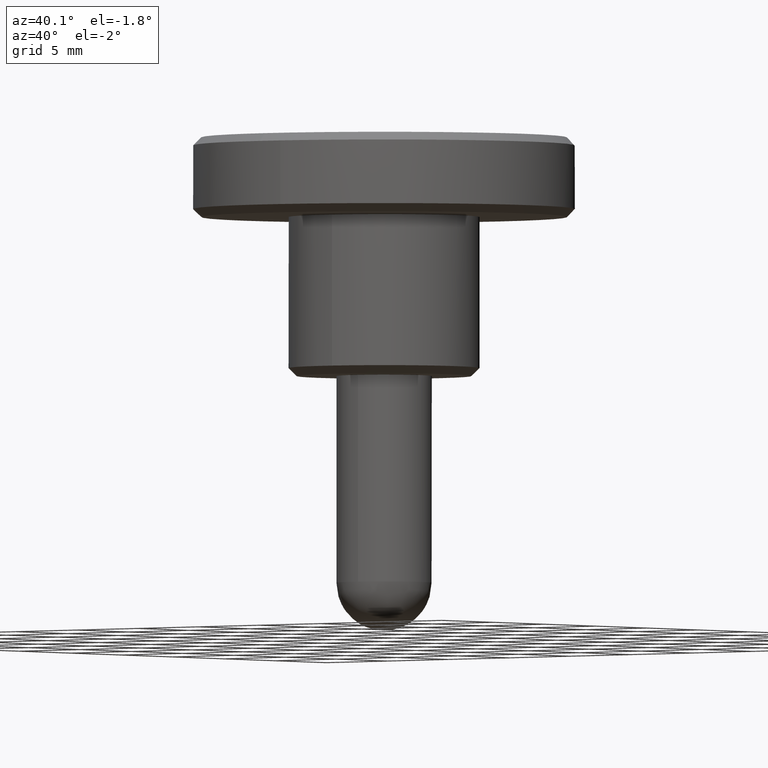
[diagram: clean part render]
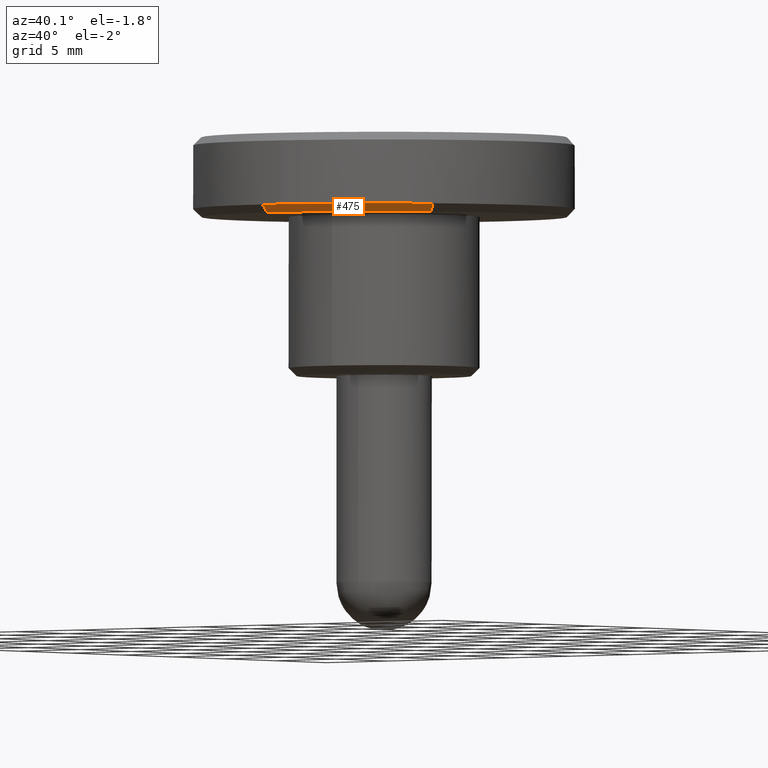
[diagram: same view with one face highlighted and labeled with its STEP entity id]
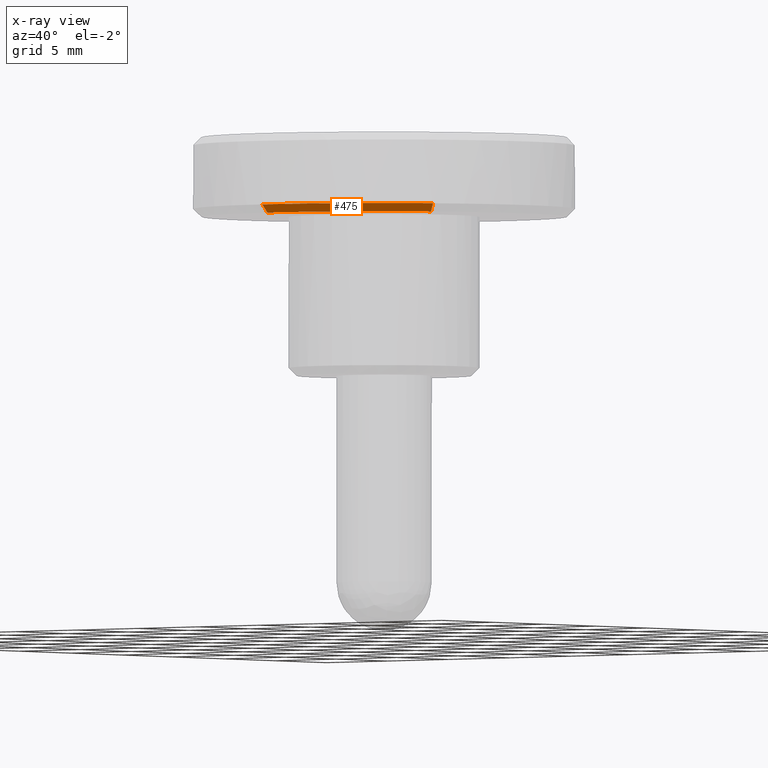
[diagram: x-ray of the same camera — body ghosted, the highlighted face saturated]
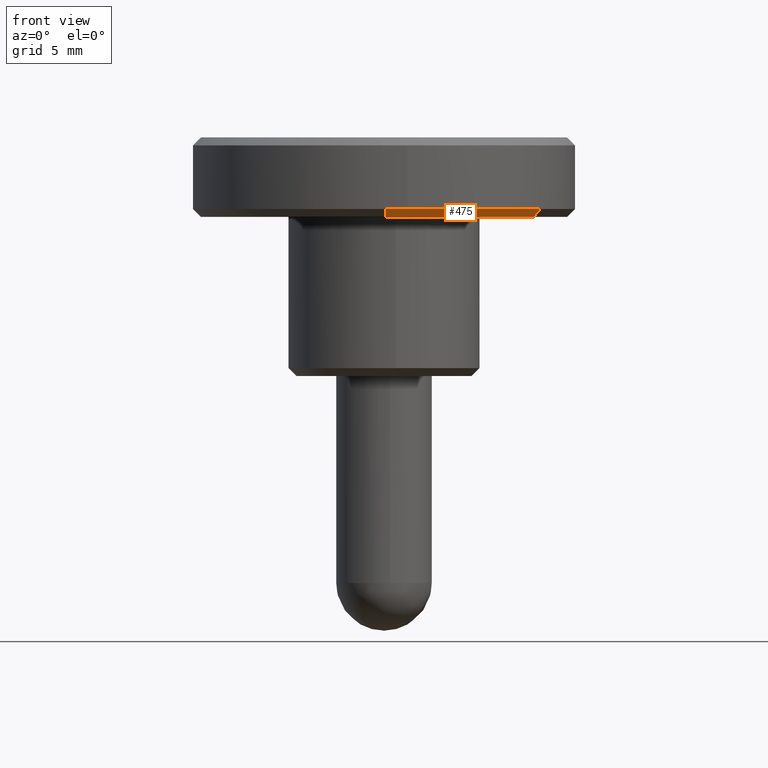
[diagram: same view with one face highlighted and labeled with its STEP entity id]
A machine part, auxiliary view. The second image highlights one B-rep face of the part: STEP entity #475.
The next image is the same camera in x-ray: the body ghosted, the highlighted face saturated — about 0% of this face is hidden behind the body in this view.
A second angle (front view) of the same face is appended — the face is thin or edge-on in the first view.
In plain terms, the highlighted face is a freeform B-spline surface patch.
Its self-contained STEP definition (entity closure, byte-faithful):
#288=CARTESIAN_POINT('',(9.416960296170243,-6.600822583614944,10.000000000000339));
#289=VERTEX_POINT('',#288);
#320=CARTESIAN_POINT('',(0.100355158261185,-11.499562115241771,10.000000000004070));
#321=VERTEX_POINT('',#320);
#337=CARTESIAN_POINT('',(0.104718425980838,-11.999543076770090,10.500000000000060));
#338=VERTEX_POINT('',#337);
#339=CARTESIAN_POINT('',(0.100355158261185,-11.499562115241771,10.000000000004070));
#340=CARTESIAN_POINT('',(0.104718425980838,-11.999543076770090,10.500000000000060));
#341=QUASI_UNIFORM_CURVE('',1,(#339,#340),.UNSPECIFIED.,.F.,.U.);
#342=EDGE_CURVE('',#321,#338,#341,.T.);
#393=CARTESIAN_POINT('',(9.826393352528289,-6.887814869854642,10.500000000000149));
#394=VERTEX_POINT('',#393);
#408=CARTESIAN_POINT('',(9.416960296170243,-6.600822583614944,10.000000000000339));
#409=CARTESIAN_POINT('',(9.826393352528289,-6.887814869854642,10.500000000000149));
#410=QUASI_UNIFORM_CURVE('',1,(#408,#409),.UNSPECIFIED.,.F.,.U.);
#411=EDGE_CURVE('',#289,#394,#410,.T.);
#416=CARTESIAN_POINT('',(0.100246076537570,-11.487062591199660,9.987499999999999));
#417=CARTESIAN_POINT('',(6.012851147515387,-11.435464068446271,9.987499999999999));
#418=CARTESIAN_POINT('',(9.406724469765697,-6.593647776452057,9.987500000000001));
#419=CARTESIAN_POINT('',(0.104830234716559,-12.012355088909260,10.512812500000001));
#420=CARTESIAN_POINT('',(6.287813138238249,-11.958397014557701,10.512812500000004));
#421=CARTESIAN_POINT('',(9.836885074599064,-6.895169047186953,10.512812500000004));
#429=(BOUNDED_SURFACE()B_SPLINE_SURFACE(2,1,((#416,#419),(#417,#420),(#418,#421)),.UNSPECIFIED.,.F.,.F.,.U.)B_SPLINE_SURFACE_WITH_KNOTS((3,3),(2,2),(0.0,11.860688764435860),(0.0,1.0),.UNSPECIFIED.)GEOMETRIC_REPRESENTATION_ITEM()RATIONAL_B_SPLINE_SURFACE(((1.0,1.0),(0.824264068711928,0.824264068711928),(0.859411254969543,0.859411254969543)))REPRESENTATION_ITEM('')SURFACE());
#430=CARTESIAN_POINT('',(9.416960296170243,-6.600822583614944,10.000000000000341));
#431=CARTESIAN_POINT('',(6.019393967056276,-11.447907446074250,10.0));
#432=CARTESIAN_POINT('',(0.100355158261185,-11.499562115241773,10.000000000004068));
#440=(BOUNDED_CURVE()B_SPLINE_CURVE(2,(#430,#431,#432),.UNSPECIFIED.,.F.,.U.)B_SPLINE_CURVE_WITH_KNOTS((3,3),(0.098673726203085,0.248460105664098),.UNSPECIFIED.)CURVE()GEOMETRIC_REPRESENTATION_ITEM()RATIONAL_B_SPLINE_CURVE((0.860049271925767,0.823090203821091,0.996414028098289))REPRESENTATION_ITEM(''));
#441=EDGE_CURVE('',#289,#321,#440,.T.);
#442=ORIENTED_EDGE('',*,*,#441,.F.);
#443=ORIENTED_EDGE('',*,*,#411,.T.);
#444=CARTESIAN_POINT('',(1.489529790917476,-11.907195345753330,10.500000000000000));
#445=VERTEX_POINT('',#444);
#446=CARTESIAN_POINT('',(1.489529790917476,-11.907195345753333,10.500000000000000));
#447=CARTESIAN_POINT('',(6.771179646926979,-11.246487716688764,10.500000000000002));
#448=CARTESIAN_POINT('',(9.826393352528289,-6.887814869854643,10.500000000000149));
#456=(BOUNDED_CURVE()B_SPLINE_CURVE(2,(#446,#447,#448),.UNSPECIFIED.,.F.,.U.)B_SPLINE_CURVE_WITH_KNOTS((3,3),(0.271473840675717,0.401326273797047),.UNSPECIFIED.)CURVE()GEOMETRIC_REPRESENTATION_ITEM()RATIONAL_B_SPLINE_CURVE((0.954005601621221,0.828008809124190,0.860049271925832))REPRESENTATION_ITEM(''));
#457=EDGE_CURVE('',#445,#394,#456,.T.);
#458=ORIENTED_EDGE('',*,*,#457,.F.);
#459=CARTESIAN_POINT('',(0.104718425980838,-11.999543076770085,10.500000000000069));
#460=CARTESIAN_POINT('',(0.799798755763836,-11.993477202628043,10.499999999999996));
#461=CARTESIAN_POINT('',(1.489529790917476,-11.907195345753331,10.499999999999998));
#469=(BOUNDED_CURVE()B_SPLINE_CURVE(2,(#459,#460,#461),.UNSPECIFIED.,.F.,.U.)B_SPLINE_CURVE_WITH_KNOTS((3,3),(0.251539894334997,0.271473840675717),.UNSPECIFIED.)CURVE()GEOMETRIC_REPRESENTATION_ITEM()RATIONAL_B_SPLINE_CURVE((0.996414028100382,0.973347659681787,0.954005601621221))REPRESENTATION_ITEM(''));
#470=EDGE_CURVE('',#338,#445,#469,.T.);
#471=ORIENTED_EDGE('',*,*,#470,.F.);
#472=ORIENTED_EDGE('',*,*,#342,.F.);
#473=EDGE_LOOP('',(#442,#443,#458,#471,#472));
#474=FACE_OUTER_BOUND('',#473,.T.);
#475=ADVANCED_FACE('',(#474),#429,.T.);